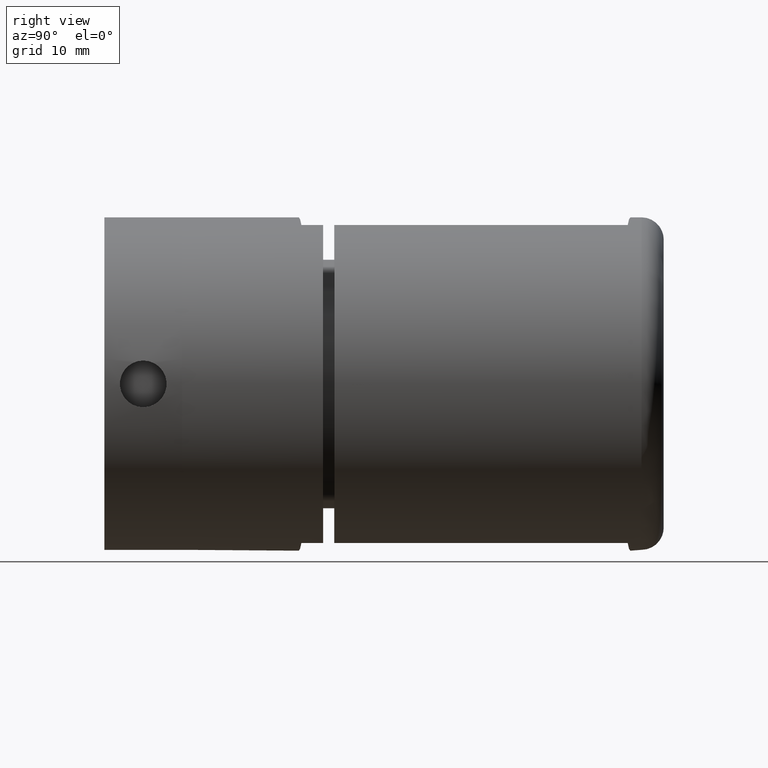
[diagram: clean part render]
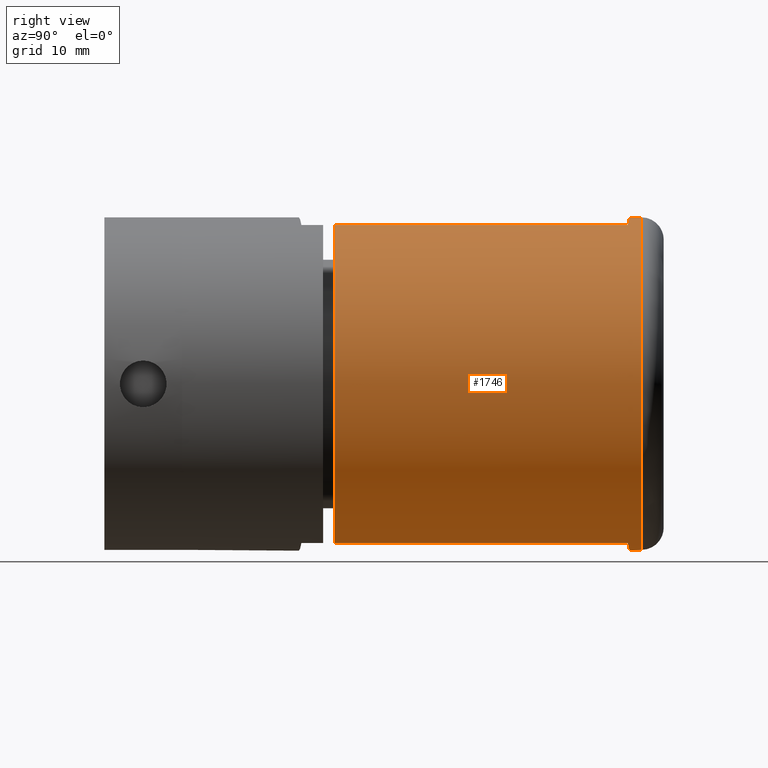
[diagram: same view with one face highlighted and labeled with its STEP entity id]
A machine part, right view. The second image highlights one B-rep face of the part: STEP entity #1746.
In plain terms, the highlighted cylindrical surface (bore or boss wall) has radius 15 mm, axis along (-0, 1, 0).
Its self-contained STEP definition (entity closure, byte-faithful):
#37 = VERTEX_POINT ( 'NONE', #3840 ) ;
#194 = CIRCLE ( 'NONE', #7882, 15.00000000000000000 ) ;
#406 = EDGE_CURVE ( 'NONE', #13560, #5653, #5225, .T. ) ;
#568 = CARTESIAN_POINT ( 'NONE',  ( 0.0000000000000000000, 31.14999999999999900, 0.0000000000000000000 ) ) ;
#801 = LINE ( 'NONE', #982, #5003 ) ;
#982 = CARTESIAN_POINT ( 'NONE',  ( 4.500000000000000000, 31.14999999999999900, 14.30908802125418500 ) ) ;
#1102 = CARTESIAN_POINT ( 'NONE',  ( 4.500000000000003600, 4.735835006773702300, 14.30908802125418300 ) ) ;
#1112 = CARTESIAN_POINT ( 'NONE',  ( -1.529386172815875300, 4.580151732983475600, 15.00000000000000000 ) ) ;
#1237 = EDGE_CURVE ( 'NONE', #2488, #13560, #6948, .T. ) ;
#1242 = ORIENTED_EDGE ( 'NONE', *, *, #4720, .T. ) ;
#1402 = VERTEX_POINT ( 'NONE', #4249 ) ;
#1746 = ADVANCED_FACE ( 'NONE', ( #6467, #12697 ), #6265, .T. ) ;
#1826 = DIRECTION ( 'NONE',  ( 0.0000000000000000000, 0.0000000000000000000, 1.000000000000000000 ) ) ;
#1845 = ORIENTED_EDGE ( 'NONE', *, *, #1237, .T. ) ;
#2146 = CIRCLE ( 'NONE', #9002, 15.00000000000000000 ) ;
#2488 = VERTEX_POINT ( 'NONE', #6337 ) ;
#2837 = DIRECTION ( 'NONE',  ( -0.0000000000000000000, -1.000000000000000000, -0.0000000000000000000 ) ) ;
#3197 = CARTESIAN_POINT ( 'NONE',  ( 4.500000000000000000, 31.14999999999999900, -14.30908802125418500 ) ) ;
#3561 = EDGE_CURVE ( 'NONE', #1402, #14640, #10973, .T. ) ;
#3840 = CARTESIAN_POINT ( 'NONE',  ( -4.500000000000000000, 31.14999999999999900, 14.30908802125418300 ) ) ;
#4249 = CARTESIAN_POINT ( 'NONE',  ( -4.500000000000003600, 4.735835006773702300, -14.30908802125418500 ) ) ;
#4504 = CARTESIAN_POINT ( 'NONE',  ( 1.529386172815876600, 4.580151732983472000, -15.00000000000000000 ) ) ;
#4623 = EDGE_CURVE ( 'NONE', #11800, #11800, #8357, .T. ) ;
#4720 = EDGE_CURVE ( 'NONE', #4924, #2488, #801, .T. ) ;
#4815 = VERTEX_POINT ( 'NONE', #16516 ) ;
#4924 = VERTEX_POINT ( 'NONE', #16979 ) ;
#5003 = VECTOR ( 'NONE', #14341, 1000.000000000000000 ) ;
#5101 = DIRECTION ( 'NONE',  ( -0.0000000000000000000, 1.000000000000000000, -0.0000000000000000000 ) ) ;
#5225 =( BOUNDED_CURVE ( )  B_SPLINE_CURVE ( 3, ( #13029, #1112, #8979, #10413 ),
 .UNSPECIFIED., .F., .F. ) 
 B_SPLINE_CURVE_WITH_KNOTS ( ( 4, 4 ),
 ( 1.570796326794896600, 1.875488980810294400 ),
 .UNSPECIFIED. ) 
 CURVE ( )  GEOMETRIC_REPRESENTATION_ITEM ( )  RATIONAL_B_SPLINE_CURVE ( ( 1.000000000000000000, 0.9922784838777377600, 0.9922784838777377600, 1.000000000000000000 ) ) 
 REPRESENTATION_ITEM ( '' )  );
#5653 = VERTEX_POINT ( 'NONE', #15323 ) ;
#5750 = CARTESIAN_POINT ( 'NONE',  ( 3.041058575645909600, 4.659375126619257100, -14.76790387309894800 ) ) ;
#5829 = VERTEX_POINT ( 'NONE', #6192 ) ;
#6192 = CARTESIAN_POINT ( 'NONE',  ( -4.500000000000000000, 31.14999999999999900, -14.30908802125418500 ) ) ;
#6265 = CYLINDRICAL_SURFACE ( 'NONE', #14497, 15.00000000000000000 ) ;
#6275 = ORIENTED_EDGE ( 'NONE', *, *, #4623, .T. ) ;
#6337 = CARTESIAN_POINT ( 'NONE',  ( 4.500000000000003600, 4.735835006773702300, 14.30908802125418300 ) ) ;
#6355 = CARTESIAN_POINT ( 'NONE',  ( 0.0000000000000000000, 4.500000000000000900, 15.00000000000000000 ) ) ;
#6467 = FACE_OUTER_BOUND ( 'NONE', #9421, .T. ) ;
#6703 = ORIENTED_EDGE ( 'NONE', *, *, #6760, .T. ) ;
#6760 = EDGE_CURVE ( 'NONE', #5829, #1402, #12455, .T. ) ;
#6948 =( BOUNDED_CURVE ( )  B_SPLINE_CURVE ( 3, ( #1102, #15782, #14287, #6355 ),
 .UNSPECIFIED., .F., .F. ) 
 B_SPLINE_CURVE_WITH_KNOTS ( ( 4, 4 ),
 ( 4.407696326369292100, 4.712388980384689700 ),
 .UNSPECIFIED. ) 
 CURVE ( )  GEOMETRIC_REPRESENTATION_ITEM ( )  RATIONAL_B_SPLINE_CURVE ( ( 1.000000000000000000, 0.9922784838777378700, 0.9922784838777378700, 1.000000000000000000 ) ) 
 REPRESENTATION_ITEM ( '' )  );
#7071 = AXIS2_PLACEMENT_3D ( 'NONE', #14500, #5101, #15940 ) ;
#7256 = CARTESIAN_POINT ( 'NONE',  ( 0.0000000000000000000, 3.499999999999999600, -15.00000000000000000 ) ) ;
#7495 = CARTESIAN_POINT ( 'NONE',  ( 0.0000000000000000000, 4.500000000000000900, 15.00000000000000000 ) ) ;
#7849 = VECTOR ( 'NONE', #9293, 1000.000000000000000 ) ;
#7856 = VERTEX_POINT ( 'NONE', #3197 ) ;
#7882 = AXIS2_PLACEMENT_3D ( 'NONE', #568, #9875, #1826 ) ;
#8055 = ORIENTED_EDGE ( 'NONE', *, *, #15036, .T. ) ;
#8194 = ORIENTED_EDGE ( 'NONE', *, *, #9870, .F. ) ;
#8357 = CIRCLE ( 'NONE', #7071, 15.00000000000000000 ) ;
#8748 = EDGE_CURVE ( 'NONE', #5653, #37, #9739, .T. ) ;
#8772 = CARTESIAN_POINT ( 'NONE',  ( -3.041058575645909600, 4.659375126619261600, -14.76790387309894600 ) ) ;
#8979 = CARTESIAN_POINT ( 'NONE',  ( -3.041058575645908300, 4.659375126619261600, 14.76790387309894600 ) ) ;
#9002 = AXIS2_PLACEMENT_3D ( 'NONE', #10613, #14504, #14608 ) ;
#9214 = DIRECTION ( 'NONE',  ( 0.0000000000000000000, 0.0000000000000000000, -1.000000000000000000 ) ) ;
#9293 = DIRECTION ( 'NONE',  ( 0.0000000000000000000, 1.000000000000000000, 0.0000000000000000000 ) ) ;
#9421 = EDGE_LOOP ( 'NONE', ( #6275 ) ) ;
#9520 = DIRECTION ( 'NONE',  ( 0.0000000000000000000, 1.000000000000000000, 0.0000000000000000000 ) ) ;
#9739 = LINE ( 'NONE', #16153, #16830 ) ;
#9826 = CARTESIAN_POINT ( 'NONE',  ( 0.0000000000000000000, 4.500000000000000900, -15.00000000000000000 ) ) ;
#9870 = EDGE_CURVE ( 'NONE', #5829, #37, #194, .T. ) ;
#9875 = DIRECTION ( 'NONE',  ( 0.0000000000000000000, 1.000000000000000000, 0.0000000000000000000 ) ) ;
#10043 = CARTESIAN_POINT ( 'NONE',  ( 0.0000000000000000000, 4.500000000000000900, -15.00000000000000000 ) ) ;
#10413 = CARTESIAN_POINT ( 'NONE',  ( -4.500000000000003600, 4.735835006773702300, 14.30908802125418300 ) ) ;
#10427 = DIRECTION ( 'NONE',  ( -0.0000000000000000000, -1.000000000000000000, -0.0000000000000000000 ) ) ;
#10481 = CARTESIAN_POINT ( 'NONE',  ( 0.0000000000000000000, 4.500000000000000900, -15.00000000000000000 ) ) ;
#10506 = EDGE_CURVE ( 'NONE', #4815, #7856, #15767, .T. ) ;
#10613 = CARTESIAN_POINT ( 'NONE',  ( 0.0000000000000000000, 31.14999999999999900, 0.0000000000000000000 ) ) ;
#10973 =( BOUNDED_CURVE ( )  B_SPLINE_CURVE ( 3, ( #16619, #8772, #11327, #10043 ),
 .UNSPECIFIED., .F., .F. ) 
 B_SPLINE_CURVE_WITH_KNOTS ( ( 4, 4 ),
 ( 4.407696326369292100, 4.712388980384689700 ),
 .UNSPECIFIED. ) 
 CURVE ( )  GEOMETRIC_REPRESENTATION_ITEM ( )  RATIONAL_B_SPLINE_CURVE ( ( 1.000000000000000000, 0.9922784838777378700, 0.9922784838777378700, 1.000000000000000000 ) ) 
 REPRESENTATION_ITEM ( '' )  );
#11327 = CARTESIAN_POINT ( 'NONE',  ( -1.529386172815877700, 4.580151732983475600, -14.99999999999999800 ) ) ;
#11800 = VERTEX_POINT ( 'NONE', #7256 ) ;
#12145 = CARTESIAN_POINT ( 'NONE',  ( 4.500000000000000000, 31.14999999999999900, -14.30908802125418500 ) ) ;
#12204 = EDGE_CURVE ( 'NONE', #4924, #7856, #2146, .T. ) ;
#12242 = CARTESIAN_POINT ( 'NONE',  ( -4.500000000000000000, 31.14999999999999900, -14.30908802125418500 ) ) ;
#12455 = LINE ( 'NONE', #12242, #13297 ) ;
#12697 = FACE_OUTER_BOUND ( 'NONE', #14325, .T. ) ;
#13029 = CARTESIAN_POINT ( 'NONE',  ( 0.0000000000000000000, 4.500000000000000900, 15.00000000000000000 ) ) ;
#13297 = VECTOR ( 'NONE', #2837, 1000.000000000000000 ) ;
#13452 = ORIENTED_EDGE ( 'NONE', *, *, #8748, .T. ) ;
#13560 = VERTEX_POINT ( 'NONE', #7495 ) ;
#14217 = ORIENTED_EDGE ( 'NONE', *, *, #12204, .F. ) ;
#14287 = CARTESIAN_POINT ( 'NONE',  ( 1.529386172815877700, 4.580151732983472000, 14.99999999999999800 ) ) ;
#14325 = EDGE_LOOP ( 'NONE', ( #8055, #15072, #14217, #1242, #1845, #14484, #13452, #8194, #6703, #15374 ) ) ;
#14341 = DIRECTION ( 'NONE',  ( -0.0000000000000000000, -1.000000000000000000, -0.0000000000000000000 ) ) ;
#14484 = ORIENTED_EDGE ( 'NONE', *, *, #406, .T. ) ;
#14497 = AXIS2_PLACEMENT_3D ( 'NONE', #17060, #10427, #9214 ) ;
#14500 = CARTESIAN_POINT ( 'NONE',  ( 0.0000000000000000000, 3.499999999999999600, 0.0000000000000000000 ) ) ;
#14504 = DIRECTION ( 'NONE',  ( 0.0000000000000000000, 1.000000000000000000, 0.0000000000000000000 ) ) ;
#14608 = DIRECTION ( 'NONE',  ( 0.0000000000000000000, 0.0000000000000000000, 1.000000000000000000 ) ) ;
#14640 = VERTEX_POINT ( 'NONE', #10481 ) ;
#14967 = CARTESIAN_POINT ( 'NONE',  ( 4.500000000000003600, 4.735835006773702300, -14.30908802125418300 ) ) ;
#15036 = EDGE_CURVE ( 'NONE', #14640, #4815, #15169, .T. ) ;
#15072 = ORIENTED_EDGE ( 'NONE', *, *, #10506, .T. ) ;
#15169 =( BOUNDED_CURVE ( )  B_SPLINE_CURVE ( 3, ( #9826, #4504, #5750, #14967 ),
 .UNSPECIFIED., .F., .F. ) 
 B_SPLINE_CURVE_WITH_KNOTS ( ( 4, 4 ),
 ( 1.570796326794896600, 1.875488980810294600 ),
 .UNSPECIFIED. ) 
 CURVE ( )  GEOMETRIC_REPRESENTATION_ITEM ( )  RATIONAL_B_SPLINE_CURVE ( ( 1.000000000000000000, 0.9922784838777377600, 0.9922784838777377600, 1.000000000000000000 ) ) 
 REPRESENTATION_ITEM ( '' )  );
#15323 = CARTESIAN_POINT ( 'NONE',  ( -4.500000000000003600, 4.735835006773702300, 14.30908802125418300 ) ) ;
#15374 = ORIENTED_EDGE ( 'NONE', *, *, #3561, .T. ) ;
#15767 = LINE ( 'NONE', #12145, #7849 ) ;
#15782 = CARTESIAN_POINT ( 'NONE',  ( 3.041058575645909600, 4.659375126619258000, 14.76790387309894600 ) ) ;
#15940 = DIRECTION ( 'NONE',  ( 0.0000000000000000000, 0.0000000000000000000, -1.000000000000000000 ) ) ;
#16153 = CARTESIAN_POINT ( 'NONE',  ( -4.500000000000000000, 31.14999999999999900, 14.30908802125418500 ) ) ;
#16516 = CARTESIAN_POINT ( 'NONE',  ( 4.500000000000003600, 4.735835006773702300, -14.30908802125418300 ) ) ;
#16619 = CARTESIAN_POINT ( 'NONE',  ( -4.500000000000003600, 4.735835006773702300, -14.30908802125418500 ) ) ;
#16830 = VECTOR ( 'NONE', #9520, 1000.000000000000000 ) ;
#16979 = CARTESIAN_POINT ( 'NONE',  ( 4.500000000000000000, 31.14999999999999900, 14.30908802125418300 ) ) ;
#17060 = CARTESIAN_POINT ( 'NONE',  ( 0.0000000000000000000, 31.14999999999999900, 0.0000000000000000000 ) ) ;